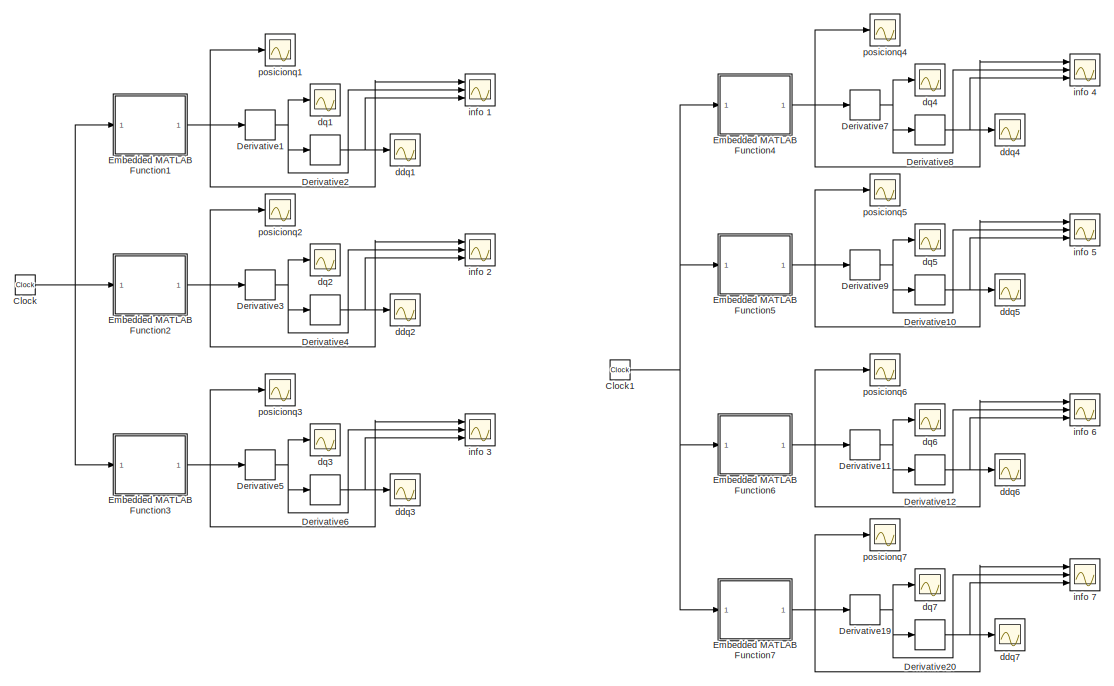
[diagram: root canvas - part 1/3, top right region]
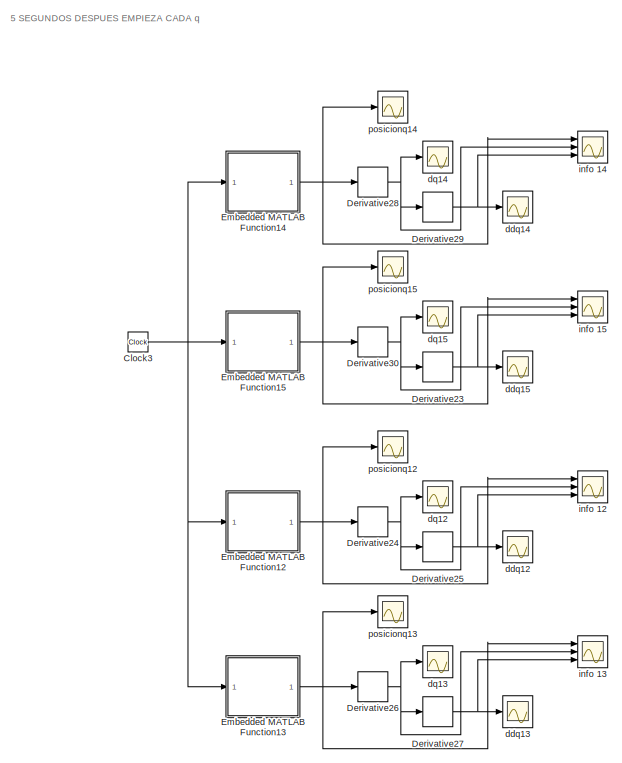
[diagram: root canvas - part 2/3, top left region]
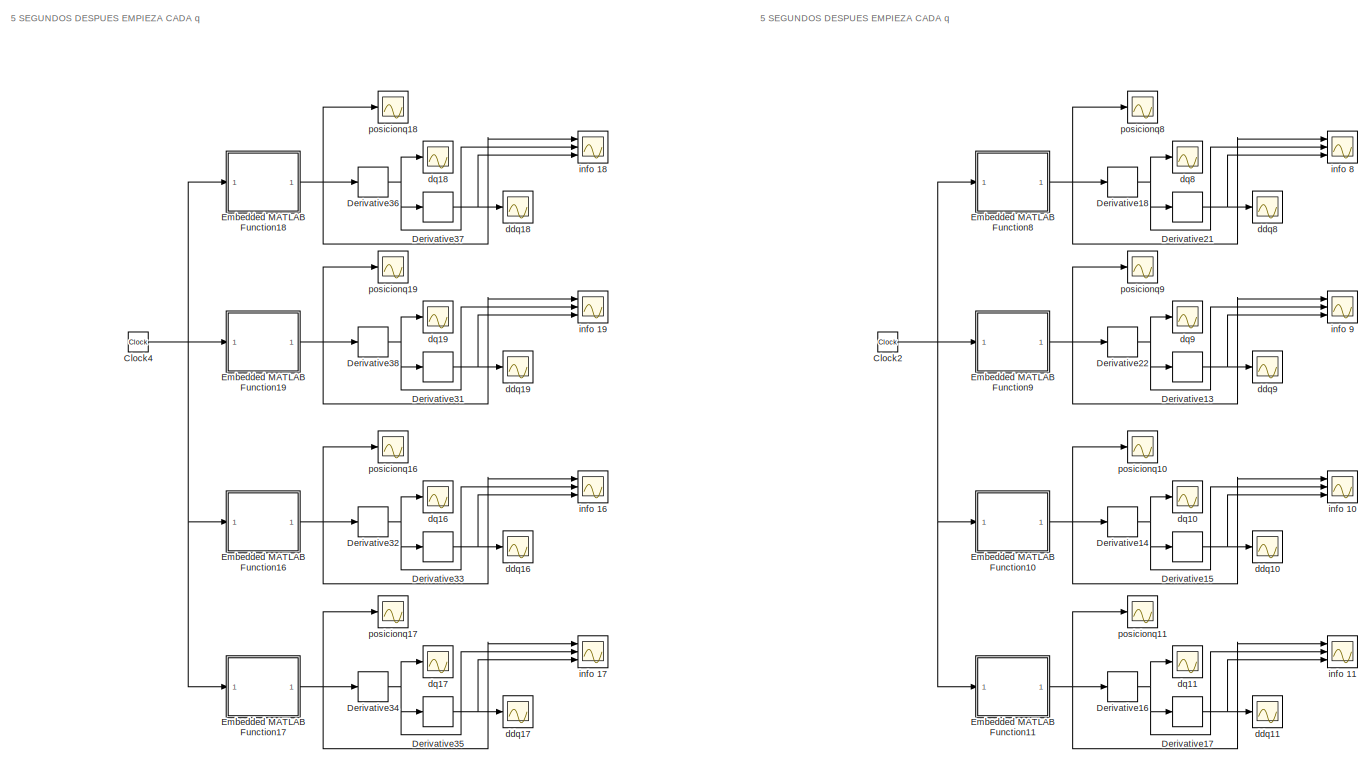
[diagram: root canvas - part 3/3, bottom center region]
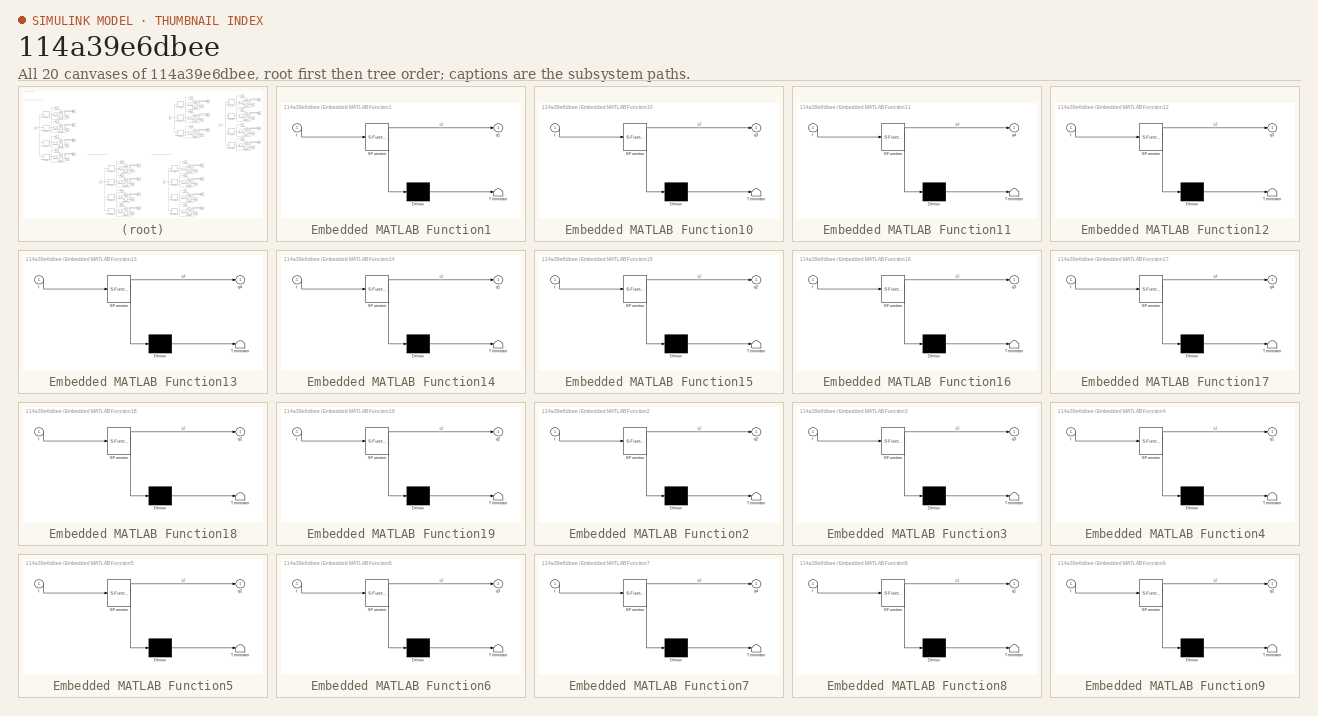
[diagram: thumbnail index - all 20 canvases of the model, root first then tree order]
MODEL slx_114a39e6dbee
KIND model
CONFIG AbsTol = auto
CONFIG EnableMultiTasking = on
CONFIG FixedStep = auto
CONFIG MaxStep = 0.1
CONFIG MinStep = auto
CONFIG RelTol = 1e-3
CONFIG SampleTimeConstraint = Unconstrained
CONFIG SolverName = ode45
CONFIG StartTime = 0.0
CONFIG StopTime = 200
BLOCK [Clock] Clock
  Decimation = 1000
BLOCK [Clock] Clock1
  Decimation = 1000
BLOCK [Clock] Clock2
  Decimation = 1000
BLOCK [Clock] Clock3
  Decimation = 1000
BLOCK [Clock] Clock4
  Decimation = 1000
BLOCK [Derivative] Derivative1
BLOCK [Derivative] Derivative10
BLOCK [Derivative] Derivative11
BLOCK [Derivative] Derivative12
BLOCK [Derivative] Derivative13
BLOCK [Derivative] Derivative14
BLOCK [Derivative] Derivative15
BLOCK [Derivative] Derivative16
BLOCK [Derivative] Derivative17
BLOCK [Derivative] Derivative18
BLOCK [Derivative] Derivative19
BLOCK [Derivative] Derivative2
BLOCK [Derivative] Derivative20
BLOCK [Derivative] Derivative21
BLOCK [Derivative] Derivative22
BLOCK [Derivative] Derivative23
BLOCK [Derivative] Derivative24
BLOCK [Derivative] Derivative25
BLOCK [Derivative] Derivative26
BLOCK [Derivative] Derivative27
BLOCK [Derivative] Derivative28
BLOCK [Derivative] Derivative29
BLOCK [Derivative] Derivative3
BLOCK [Derivative] Derivative30
BLOCK [Derivative] Derivative31
BLOCK [Derivative] Derivative32
BLOCK [Derivative] Derivative33
BLOCK [Derivative] Derivative34
BLOCK [Derivative] Derivative35
BLOCK [Derivative] Derivative36
BLOCK [Derivative] Derivative37
BLOCK [Derivative] Derivative38
BLOCK [Derivative] Derivative4
BLOCK [Derivative] Derivative5
BLOCK [Derivative] Derivative6
BLOCK [Derivative] Derivative7
BLOCK [Derivative] Derivative8
BLOCK [Derivative] Derivative9
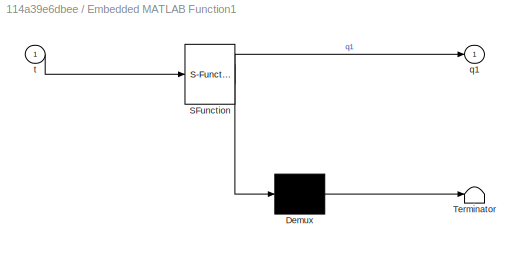
BLOCK [SubSystem] Embedded MATLAB Function1
  ErrorFcn = Stateflow.Translate.translate
  PermitHierarchicalResolution = ExplicitOnly
  Ports = [1, 1]
  RequestExecContextInheritance = off
  SFBlockType = MATLAB Function
  TreatAsAtomicUnit = on
BLOCK [Demux] Embedded MATLAB Function1/ Demux 
  Outputs = 1
  Ports = [1, 1]
BLOCK [S-Function] Embedded MATLAB Function1/ SFunction 
  EnableBusSupport = on
  FunctionName = sf_sfun
  PortCounts = [1 2]
  Ports = [1, 2]
  SFcnIsStateOwnerBlock = off
  SFunctionDeploymentMode = off
  Tag = Stateflow S-Function 1
BLOCK [Terminator] Embedded MATLAB Function1/ Terminator 
BLOCK [Outport] Embedded MATLAB Function1/q1
  VectorParamsAs1DForOutWhenUnconnected = off
BLOCK [Inport] Embedded MATLAB Function1/t
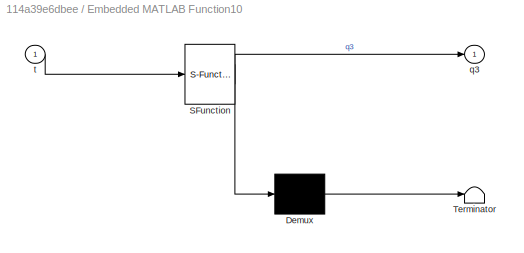
BLOCK [SubSystem] Embedded MATLAB Function10
  ErrorFcn = Stateflow.Translate.translate
  PermitHierarchicalResolution = ExplicitOnly
  Ports = [1, 1]
  RequestExecContextInheritance = off
  SFBlockType = MATLAB Function
  TreatAsAtomicUnit = on
BLOCK [Demux] Embedded MATLAB Function10/ Demux 
  Outputs = 1
  Ports = [1, 1]
BLOCK [S-Function] Embedded MATLAB Function10/ SFunction 
  EnableBusSupport = on
  FunctionName = sf_sfun
  PortCounts = [1 2]
  Ports = [1, 2]
  SFcnIsStateOwnerBlock = off
  SFunctionDeploymentMode = off
  Tag = Stateflow S-Function 7
BLOCK [Terminator] Embedded MATLAB Function10/ Terminator 
BLOCK [Outport] Embedded MATLAB Function10/q3
  VectorParamsAs1DForOutWhenUnconnected = off
BLOCK [Inport] Embedded MATLAB Function10/t
BLOCK [SubSystem] Embedded MATLAB Function11
  ErrorFcn = Stateflow.Translate.translate
  PermitHierarchicalResolution = ExplicitOnly
  Ports = [1, 1]
  RequestExecContextInheritance = off
  SFBlockType = MATLAB Function
  TreatAsAtomicUnit = on
BLOCK [Demux] Embedded MATLAB Function11/ Demux 
  Outputs = 1
  Ports = [1, 1]
BLOCK [S-Function] Embedded MATLAB Function11/ SFunction 
  EnableBusSupport = on
  FunctionName = sf_sfun
  PortCounts = [1 2]
  Ports = [1, 2]
  SFcnIsStateOwnerBlock = off
  SFunctionDeploymentMode = off
  Tag = Stateflow S-Function 8
BLOCK [Terminator] Embedded MATLAB Function11/ Terminator 
BLOCK [Outport] Embedded MATLAB Function11/q4
  VectorParamsAs1DForOutWhenUnconnected = off
BLOCK [Inport] Embedded MATLAB Function11/t
BLOCK [SubSystem] Embedded MATLAB Function12
  ErrorFcn = Stateflow.Translate.translate
  PermitHierarchicalResolution = ExplicitOnly
  Ports = [1, 1]
  RequestExecContextInheritance = off
  SFBlockType = MATLAB Function
  TreatAsAtomicUnit = on
BLOCK [Demux] Embedded MATLAB Function12/ Demux 
  Outputs = 1
  Ports = [1, 1]
BLOCK [S-Function] Embedded MATLAB Function12/ SFunction 
  EnableBusSupport = on
  FunctionName = sf_sfun
  PortCounts = [1 2]
  Ports = [1, 2]
  SFcnIsStateOwnerBlock = off
  SFunctionDeploymentMode = off
  Tag = Stateflow S-Function 12
BLOCK [Terminator] Embedded MATLAB Function12/ Terminator 
BLOCK [Outport] Embedded MATLAB Function12/q3
  VectorParamsAs1DForOutWhenUnconnected = off
BLOCK [Inport] Embedded MATLAB Function12/t
BLOCK [SubSystem] Embedded MATLAB Function13
  ErrorFcn = Stateflow.Translate.translate
  PermitHierarchicalResolution = ExplicitOnly
  Ports = [1, 1]
  RequestExecContextInheritance = off
  SFBlockType = MATLAB Function
  TreatAsAtomicUnit = on
BLOCK [Demux] Embedded MATLAB Function13/ Demux 
  Outputs = 1
  Ports = [1, 1]
BLOCK [S-Function] Embedded MATLAB Function13/ SFunction 
  EnableBusSupport = on
  FunctionName = sf_sfun
  PortCounts = [1 2]
  Ports = [1, 2]
  SFcnIsStateOwnerBlock = off
  SFunctionDeploymentMode = off
  Tag = Stateflow S-Function 13
BLOCK [Terminator] Embedded MATLAB Function13/ Terminator 
BLOCK [Outport] Embedded MATLAB Function13/q4
  VectorParamsAs1DForOutWhenUnconnected = off
BLOCK [Inport] Embedded MATLAB Function13/t
BLOCK [SubSystem] Embedded MATLAB Function14
  ErrorFcn = Stateflow.Translate.translate
  PermitHierarchicalResolution = ExplicitOnly
  Ports = [1, 1]
  RequestExecContextInheritance = off
  SFBlockType = MATLAB Function
  TreatAsAtomicUnit = on
BLOCK [Demux] Embedded MATLAB Function14/ Demux 
  Outputs = 1
  Ports = [1, 1]
BLOCK [S-Function] Embedded MATLAB Function14/ SFunction 
  EnableBusSupport = on
  FunctionName = sf_sfun
  PortCounts = [1 2]
  Ports = [1, 2]
  SFcnIsStateOwnerBlock = off
  SFunctionDeploymentMode = off
  Tag = Stateflow S-Function 14
BLOCK [Terminator] Embedded MATLAB Function14/ Terminator 
BLOCK [Outport] Embedded MATLAB Function14/q1
  VectorParamsAs1DForOutWhenUnconnected = off
BLOCK [Inport] Embedded MATLAB Function14/t
BLOCK [SubSystem] Embedded MATLAB Function15
  ErrorFcn = Stateflow.Translate.translate
  PermitHierarchicalResolution = ExplicitOnly
  Ports = [1, 1]
  RequestExecContextInheritance = off
  SFBlockType = MATLAB Function
  TreatAsAtomicUnit = on
BLOCK [Demux] Embedded MATLAB Function15/ Demux 
  Outputs = 1
  Ports = [1, 1]
BLOCK [S-Function] Embedded MATLAB Function15/ SFunction 
  EnableBusSupport = on
  FunctionName = sf_sfun
  PortCounts = [1 2]
  Ports = [1, 2]
  SFcnIsStateOwnerBlock = off
  SFunctionDeploymentMode = off
  Tag = Stateflow S-Function 15
BLOCK [Terminator] Embedded MATLAB Function15/ Terminator 
BLOCK [Outport] Embedded MATLAB Function15/q2
  VectorParamsAs1DForOutWhenUnconnected = off
BLOCK [Inport] Embedded MATLAB Function15/t
BLOCK [SubSystem] Embedded MATLAB Function16
  ErrorFcn = Stateflow.Translate.translate
  PermitHierarchicalResolution = ExplicitOnly
  Ports = [1, 1]
  RequestExecContextInheritance = off
  SFBlockType = MATLAB Function
  TreatAsAtomicUnit = on
BLOCK [Demux] Embedded MATLAB Function16/ Demux 
  Outputs = 1
  Ports = [1, 1]
BLOCK [S-Function] Embedded MATLAB Function16/ SFunction 
  EnableBusSupport = on
  FunctionName = sf_sfun
  PortCounts = [1 2]
  Ports = [1, 2]
  SFcnIsStateOwnerBlock = off
  SFunctionDeploymentMode = off
  Tag = Stateflow S-Function 16
BLOCK [Terminator] Embedded MATLAB Function16/ Terminator 
BLOCK [Outport] Embedded MATLAB Function16/q3
  VectorParamsAs1DForOutWhenUnconnected = off
BLOCK [Inport] Embedded MATLAB Function16/t
BLOCK [SubSystem] Embedded MATLAB Function17
  ErrorFcn = Stateflow.Translate.translate
  PermitHierarchicalResolution = ExplicitOnly
  Ports = [1, 1]
  RequestExecContextInheritance = off
  SFBlockType = MATLAB Function
  TreatAsAtomicUnit = on
BLOCK [Demux] Embedded MATLAB Function17/ Demux 
  Outputs = 1
  Ports = [1, 1]
BLOCK [S-Function] Embedded MATLAB Function17/ SFunction 
  EnableBusSupport = on
  FunctionName = sf_sfun
  PortCounts = [1 2]
  Ports = [1, 2]
  SFcnIsStateOwnerBlock = off
  SFunctionDeploymentMode = off
  Tag = Stateflow S-Function 17
BLOCK [Terminator] Embedded MATLAB Function17/ Terminator 
BLOCK [Outport] Embedded MATLAB Function17/q4
  VectorParamsAs1DForOutWhenUnconnected = off
BLOCK [Inport] Embedded MATLAB Function17/t
BLOCK [SubSystem] Embedded MATLAB Function18
  ErrorFcn = Stateflow.Translate.translate
  PermitHierarchicalResolution = ExplicitOnly
  Ports = [1, 1]
  RequestExecContextInheritance = off
  SFBlockType = MATLAB Function
  TreatAsAtomicUnit = on
BLOCK [Demux] Embedded MATLAB Function18/ Demux 
  Outputs = 1
  Ports = [1, 1]
BLOCK [S-Function] Embedded MATLAB Function18/ SFunction 
  EnableBusSupport = on
  FunctionName = sf_sfun
  PortCounts = [1 2]
  Ports = [1, 2]
  SFcnIsStateOwnerBlock = off
  SFunctionDeploymentMode = off
  Tag = Stateflow S-Function 18
BLOCK [Terminator] Embedded MATLAB Function18/ Terminator 
BLOCK [Outport] Embedded MATLAB Function18/q2
  VectorParamsAs1DForOutWhenUnconnected = off
BLOCK [Inport] Embedded MATLAB Function18/t
BLOCK [SubSystem] Embedded MATLAB Function19
  ErrorFcn = Stateflow.Translate.translate
  PermitHierarchicalResolution = ExplicitOnly
  Ports = [1, 1]
  RequestExecContextInheritance = off
  SFBlockType = MATLAB Function
  TreatAsAtomicUnit = on
BLOCK [Demux] Embedded MATLAB Function19/ Demux 
  Outputs = 1
  Ports = [1, 1]
BLOCK [S-Function] Embedded MATLAB Function19/ SFunction 
  EnableBusSupport = on
  FunctionName = sf_sfun
  PortCounts = [1 2]
  Ports = [1, 2]
  SFcnIsStateOwnerBlock = off
  SFunctionDeploymentMode = off
  Tag = Stateflow S-Function 19
BLOCK [Terminator] Embedded MATLAB Function19/ Terminator 
BLOCK [Outport] Embedded MATLAB Function19/q2
  VectorParamsAs1DForOutWhenUnconnected = off
BLOCK [Inport] Embedded MATLAB Function19/t
BLOCK [SubSystem] Embedded MATLAB Function2
  ErrorFcn = Stateflow.Translate.translate
  PermitHierarchicalResolution = ExplicitOnly
  Ports = [1, 1]
  RequestExecContextInheritance = off
  SFBlockType = MATLAB Function
  TreatAsAtomicUnit = on
BLOCK [Demux] Embedded MATLAB Function2/ Demux 
  Outputs = 1
  Ports = [1, 1]
BLOCK [S-Function] Embedded MATLAB Function2/ SFunction 
  EnableBusSupport = on
  FunctionName = sf_sfun
  PortCounts = [1 2]
  Ports = [1, 2]
  SFcnIsStateOwnerBlock = off
  SFunctionDeploymentMode = off
  Tag = Stateflow S-Function 2
BLOCK [Terminator] Embedded MATLAB Function2/ Terminator 
BLOCK [Outport] Embedded MATLAB Function2/q2
  VectorParamsAs1DForOutWhenUnconnected = off
BLOCK [Inport] Embedded MATLAB Function2/t
BLOCK [SubSystem] Embedded MATLAB Function3
  ErrorFcn = Stateflow.Translate.translate
  PermitHierarchicalResolution = ExplicitOnly
  Ports = [1, 1]
  RequestExecContextInheritance = off
  SFBlockType = MATLAB Function
  TreatAsAtomicUnit = on
BLOCK [Demux] Embedded MATLAB Function3/ Demux 
  Outputs = 1
  Ports = [1, 1]
BLOCK [S-Function] Embedded MATLAB Function3/ SFunction 
  EnableBusSupport = on
  FunctionName = sf_sfun
  PortCounts = [1 2]
  Ports = [1, 2]
  SFcnIsStateOwnerBlock = off
  SFunctionDeploymentMode = off
  Tag = Stateflow S-Function 3
BLOCK [Terminator] Embedded MATLAB Function3/ Terminator 
BLOCK [Outport] Embedded MATLAB Function3/q3
  VectorParamsAs1DForOutWhenUnconnected = off
BLOCK [Inport] Embedded MATLAB Function3/t
BLOCK [SubSystem] Embedded MATLAB Function4
  ErrorFcn = Stateflow.Translate.translate
  PermitHierarchicalResolution = ExplicitOnly
  Ports = [1, 1]
  RequestExecContextInheritance = off
  SFBlockType = MATLAB Function
  TreatAsAtomicUnit = on
BLOCK [Demux] Embedded MATLAB Function4/ Demux 
  Outputs = 1
  Ports = [1, 1]
BLOCK [S-Function] Embedded MATLAB Function4/ SFunction 
  EnableBusSupport = on
  FunctionName = sf_sfun
  PortCounts = [1 2]
  Ports = [1, 2]
  SFcnIsStateOwnerBlock = off
  SFunctionDeploymentMode = off
  Tag = Stateflow S-Function 4
BLOCK [Terminator] Embedded MATLAB Function4/ Terminator 
BLOCK [Outport] Embedded MATLAB Function4/q1
  VectorParamsAs1DForOutWhenUnconnected = off
BLOCK [Inport] Embedded MATLAB Function4/t
BLOCK [SubSystem] Embedded MATLAB Function5
  ErrorFcn = Stateflow.Translate.translate
  PermitHierarchicalResolution = ExplicitOnly
  Ports = [1, 1]
  RequestExecContextInheritance = off
  SFBlockType = MATLAB Function
  TreatAsAtomicUnit = on
BLOCK [Demux] Embedded MATLAB Function5/ Demux 
  Outputs = 1
  Ports = [1, 1]
BLOCK [S-Function] Embedded MATLAB Function5/ SFunction 
  EnableBusSupport = on
  FunctionName = sf_sfun
  PortCounts = [1 2]
  Ports = [1, 2]
  SFcnIsStateOwnerBlock = off
  SFunctionDeploymentMode = off
  Tag = Stateflow S-Function 5
BLOCK [Terminator] Embedded MATLAB Function5/ Terminator 
BLOCK [Outport] Embedded MATLAB Function5/q2
  VectorParamsAs1DForOutWhenUnconnected = off
BLOCK [Inport] Embedded MATLAB Function5/t
BLOCK [SubSystem] Embedded MATLAB Function6
  ErrorFcn = Stateflow.Translate.translate
  PermitHierarchicalResolution = ExplicitOnly
  Ports = [1, 1]
  RequestExecContextInheritance = off
  SFBlockType = MATLAB Function
  TreatAsAtomicUnit = on
BLOCK [Demux] Embedded MATLAB Function6/ Demux 
  Outputs = 1
  Ports = [1, 1]
BLOCK [S-Function] Embedded MATLAB Function6/ SFunction 
  EnableBusSupport = on
  FunctionName = sf_sfun
  PortCounts = [1 2]
  Ports = [1, 2]
  SFcnIsStateOwnerBlock = off
  SFunctionDeploymentMode = off
  Tag = Stateflow S-Function 6
BLOCK [Terminator] Embedded MATLAB Function6/ Terminator 
BLOCK [Outport] Embedded MATLAB Function6/q3
  VectorParamsAs1DForOutWhenUnconnected = off
BLOCK [Inport] Embedded MATLAB Function6/t
BLOCK [SubSystem] Embedded MATLAB Function7
  ErrorFcn = Stateflow.Translate.translate
  PermitHierarchicalResolution = ExplicitOnly
  Ports = [1, 1]
  RequestExecContextInheritance = off
  SFBlockType = MATLAB Function
  TreatAsAtomicUnit = on
BLOCK [Demux] Embedded MATLAB Function7/ Demux 
  Outputs = 1
  Ports = [1, 1]
BLOCK [S-Function] Embedded MATLAB Function7/ SFunction 
  EnableBusSupport = on
  FunctionName = sf_sfun
  PortCounts = [1 2]
  Ports = [1, 2]
  SFcnIsStateOwnerBlock = off
  SFunctionDeploymentMode = off
  Tag = Stateflow S-Function 10
BLOCK [Terminator] Embedded MATLAB Function7/ Terminator 
BLOCK [Outport] Embedded MATLAB Function7/q4
  VectorParamsAs1DForOutWhenUnconnected = off
BLOCK [Inport] Embedded MATLAB Function7/t
BLOCK [SubSystem] Embedded MATLAB Function8
  ErrorFcn = Stateflow.Translate.translate
  PermitHierarchicalResolution = ExplicitOnly
  Ports = [1, 1]
  RequestExecContextInheritance = off
  SFBlockType = MATLAB Function
  TreatAsAtomicUnit = on
BLOCK [Demux] Embedded MATLAB Function8/ Demux 
  Outputs = 1
  Ports = [1, 1]
BLOCK [S-Function] Embedded MATLAB Function8/ SFunction 
  EnableBusSupport = on
  FunctionName = sf_sfun
  PortCounts = [1 2]
  Ports = [1, 2]
  SFcnIsStateOwnerBlock = off
  SFunctionDeploymentMode = off
  Tag = Stateflow S-Function 9
BLOCK [Terminator] Embedded MATLAB Function8/ Terminator 
BLOCK [Outport] Embedded MATLAB Function8/q1
  VectorParamsAs1DForOutWhenUnconnected = off
BLOCK [Inport] Embedded MATLAB Function8/t
BLOCK [SubSystem] Embedded MATLAB Function9
  ErrorFcn = Stateflow.Translate.translate
  PermitHierarchicalResolution = ExplicitOnly
  Ports = [1, 1]
  RequestExecContextInheritance = off
  SFBlockType = MATLAB Function
  TreatAsAtomicUnit = on
BLOCK [Demux] Embedded MATLAB Function9/ Demux 
  Outputs = 1
  Ports = [1, 1]
BLOCK [S-Function] Embedded MATLAB Function9/ SFunction 
  EnableBusSupport = on
  FunctionName = sf_sfun
  PortCounts = [1 2]
  Ports = [1, 2]
  SFcnIsStateOwnerBlock = off
  SFunctionDeploymentMode = off
  Tag = Stateflow S-Function 11
BLOCK [Terminator] Embedded MATLAB Function9/ Terminator 
BLOCK [Outport] Embedded MATLAB Function9/q2
  VectorParamsAs1DForOutWhenUnconnected = off
BLOCK [Inport] Embedded MATLAB Function9/t
BLOCK [Scope] ddq1
  Floating = off
  NumInputPorts = 1
  Ports = [1]
  ScopeSpecificationString = Simulink.scopes.TimeScopeBlockCfg('CurrentConfiguration', extmgr.ConfigurationSet(extmgr.Configuration('Core','General UI',true),extmgr.Configuration('Core','Source UI',true),extmgr.Configuration('Sources','WiredSimulink',true,'DataLoggingSaveFormat','StructureWithTime','DataLoggingLimitDataPoints',true,'DataLoggingDecimation','1','DataLoggingDecimateData',true),extmgr.Configuration('Visuals','Tim...<+1690ch>
BLOCK [Scope] ddq10
  Floating = off
  NumInputPorts = 1
  Ports = [1]
  ScopeSpecificationString = Simulink.scopes.TimeScopeBlockCfg('CurrentConfiguration', extmgr.ConfigurationSet(extmgr.Configuration('Core','General UI',true,'FigureColor',[1 1 1]),extmgr.Configuration('Core','Source UI',true),extmgr.Configuration('Sources','WiredSimulink',true,'DataLoggingSaveFormat','StructureWithTime','DataLoggingLimitDataPoints',true,'DataLoggingDecimation','1','DataLoggingDecimateData',true,'DataLoggingVa...<+1850ch>  <repeated x10 — deduplicated; at blocks: ddq10, ddq11, ddq12, ddq13, ddq15, ddq18, ddq5, ddq6, ddq7, ddq9>
BLOCK [Scope] ddq11
  Floating = off
  NumInputPorts = 1
  Ports = [1]
BLOCK [Scope] ddq12
  Floating = off
  NumInputPorts = 1
  Ports = [1]
BLOCK [Scope] ddq13
  Floating = off
  NumInputPorts = 1
  Ports = [1]
BLOCK [Scope] ddq14
  Floating = off
  NumInputPorts = 1
  Ports = [1]
  ScopeSpecificationString = Simulink.scopes.TimeScopeBlockCfg('CurrentConfiguration', extmgr.ConfigurationSet(extmgr.Configuration('Core','General UI',true,'FigureColor',[1 1 1]),extmgr.Configuration('Core','Source UI',true),extmgr.Configuration('Sources','WiredSimulink',true,'DataLoggingSaveFormat','StructureWithTime','DataLoggingLimitDataPoints',true,'DataLoggingDecimation','1','DataLoggingDecimateData',true,'DataLoggingVa...<+1849ch>  <repeated x3 — deduplicated; at blocks: ddq14, ddq4, ddq8>
BLOCK [Scope] ddq15
  Floating = off
  NumInputPorts = 1
  Ports = [1]
BLOCK [Scope] ddq16
  Floating = off
  NumInputPorts = 1
  Ports = [1]
  ScopeSpecificationString = Simulink.scopes.TimeScopeBlockCfg('CurrentConfiguration', extmgr.ConfigurationSet(extmgr.Configuration('Core','General UI',true,'FigureColor',[1 1 1]),extmgr.Configuration('Core','Source UI',true),extmgr.Configuration('Sources','WiredSimulink',true,'DataLoggingSaveFormat','StructureWithTime','DataLoggingLimitDataPoints',true,'DataLoggingDecimation','1','DataLoggingDecimateData',true,'DataLoggingVa...<+1851ch>  <repeated x3 — deduplicated; at blocks: ddq16, ddq17, ddq19>
BLOCK [Scope] ddq17
  Floating = off
  NumInputPorts = 1
  Ports = [1]
BLOCK [Scope] ddq18
  Floating = off
  NumInputPorts = 1
  Ports = [1]
BLOCK [Scope] ddq19
  Floating = off
  NumInputPorts = 1
  Ports = [1]
BLOCK [Scope] ddq2
  Floating = off
  NumInputPorts = 1
  Ports = [1]
  ScopeSpecificationString = Simulink.scopes.TimeScopeBlockCfg('CurrentConfiguration', extmgr.ConfigurationSet(extmgr.Configuration('Core','General UI',true),extmgr.Configuration('Core','Source UI',true),extmgr.Configuration('Sources','WiredSimulink',true,'DataLoggingSaveFormat','StructureWithTime','DataLoggingLimitDataPoints',true,'DataLoggingDecimation','1','DataLoggingDecimateData',true,'DataLoggingVariableName','ScopeData...<+1729ch>
BLOCK [Scope] ddq3
  Floating = off
  NumInputPorts = 1
  Ports = [1]
  ScopeSpecificationString = Simulink.scopes.TimeScopeBlockCfg('CurrentConfiguration', extmgr.ConfigurationSet(extmgr.Configuration('Core','General UI',true),extmgr.Configuration('Core','Source UI',true),extmgr.Configuration('Sources','WiredSimulink',true,'DataLoggingSaveFormat','StructureWithTime','DataLoggingLimitDataPoints',true,'DataLoggingDecimation','1','DataLoggingDecimateData',true,'DataLoggingVariableName','ScopeData...<+1730ch>
BLOCK [Scope] ddq4
  Floating = off
  NumInputPorts = 1
  Ports = [1]
BLOCK [Scope] ddq5
  Floating = off
  NumInputPorts = 1
  Ports = [1]
BLOCK [Scope] ddq6
  Floating = off
  NumInputPorts = 1
  Ports = [1]
BLOCK [Scope] ddq7
  Floating = off
  NumInputPorts = 1
  Ports = [1]
BLOCK [Scope] ddq8
  Floating = off
  NumInputPorts = 1
  Ports = [1]
BLOCK [Scope] ddq9
  Floating = off
  NumInputPorts = 1
  Ports = [1]
BLOCK [Scope] dq1
  Floating = off
  NumInputPorts = 1
  Ports = [1]
  ScopeSpecificationString = Simulink.scopes.TimeScopeBlockCfg('CurrentConfiguration', extmgr.ConfigurationSet(extmgr.Configuration('Core','General UI',true),extmgr.Configuration('Core','Source UI',true),extmgr.Configuration('Sources','WiredSimulink',true,'DataLoggingSaveFormat','StructureWithTime','DataLoggingLimitDataPoints',true,'DataLoggingDecimation','1','DataLoggingDecimateData',true,'DataLoggingVariableName','ScopeData...<+1728ch>
BLOCK [Scope] dq10
  Floating = off
  NumInputPorts = 1
  Ports = [1]
  ScopeSpecificationString = Simulink.scopes.TimeScopeBlockCfg('CurrentConfiguration', extmgr.ConfigurationSet(extmgr.Configuration('Core','General UI',true,'FigureColor',[1 1 1]),extmgr.Configuration('Core','Source UI',true),extmgr.Configuration('Sources','WiredSimulink',true,'DataLoggingSaveFormat','StructureWithTime','DataLoggingLimitDataPoints',true,'DataLoggingDecimation','1','DataLoggingDecimateData',true,'DataLoggingVa...<+1898ch>  <repeated x7 — deduplicated; at blocks: dq10, dq12, dq13, dq19, dq6, dq7, dq9>
BLOCK [Scope] dq11
  Floating = off
  NumInputPorts = 1
  Ports = [1]
  ScopeSpecificationString = Simulink.scopes.TimeScopeBlockCfg('CurrentConfiguration', extmgr.ConfigurationSet(extmgr.Configuration('Core','General UI',true,'FigureColor',[1 1 1]),extmgr.Configuration('Core','Source UI',true),extmgr.Configuration('Sources','WiredSimulink',true,'DataLoggingSaveFormat','StructureWithTime','DataLoggingLimitDataPoints',true,'DataLoggingDecimation','1','DataLoggingDecimateData',true,'DataLoggingVa...<+1899ch>  <repeated x3 — deduplicated; at blocks: dq11, dq16, dq17>
BLOCK [Scope] dq12
  Floating = off
  NumInputPorts = 1
  Ports = [1]
BLOCK [Scope] dq13
  Floating = off
  NumInputPorts = 1
  Ports = [1]
BLOCK [Scope] dq14
  Floating = off
  NumInputPorts = 1
  Ports = [1]
  ScopeSpecificationString = Simulink.scopes.TimeScopeBlockCfg('CurrentConfiguration', extmgr.ConfigurationSet(extmgr.Configuration('Core','General UI',true,'FigureColor',[1 1 1]),extmgr.Configuration('Core','Source UI',true),extmgr.Configuration('Sources','WiredSimulink',true,'DataLoggingSaveFormat','StructureWithTime','DataLoggingLimitDataPoints',true,'DataLoggingDecimation','1','DataLoggingDecimateData',true,'DataLoggingVa...<+1893ch>
BLOCK [Scope] dq15
  Floating = off
  NumInputPorts = 1
  Ports = [1]
  ScopeSpecificationString = Simulink.scopes.TimeScopeBlockCfg('CurrentConfiguration', extmgr.ConfigurationSet(extmgr.Configuration('Core','General UI',true,'FigureColor',[1 1 1]),extmgr.Configuration('Core','Source UI',true),extmgr.Configuration('Sources','WiredSimulink',true,'DataLoggingSaveFormat','StructureWithTime','DataLoggingLimitDataPoints',true,'DataLoggingDecimation','1','DataLoggingDecimateData',true,'DataLoggingVa...<+1897ch>
BLOCK [Scope] dq16
  Floating = off
  NumInputPorts = 1
  Ports = [1]
BLOCK [Scope] dq17
  Floating = off
  NumInputPorts = 1
  Ports = [1]
BLOCK [Scope] dq18
  Floating = off
  NumInputPorts = 1
  Ports = [1]
  ScopeSpecificationString = Simulink.scopes.TimeScopeBlockCfg('CurrentConfiguration', extmgr.ConfigurationSet(extmgr.Configuration('Core','General UI',true,'FigureColor',[1 1 1]),extmgr.Configuration('Core','Source UI',true),extmgr.Configuration('Sources','WiredSimulink',true,'DataLoggingSaveFormat','StructureWithTime','DataLoggingLimitDataPoints',true,'DataLoggingDecimation','1','DataLoggingDecimateData',true,'DataLoggingVa...<+1894ch>
BLOCK [Scope] dq19
  Floating = off
  NumInputPorts = 1
  Ports = [1]
BLOCK [Scope] dq2
  Floating = off
  NumInputPorts = 1
  Ports = [1]
  ScopeSpecificationString = Simulink.scopes.TimeScopeBlockCfg('CurrentConfiguration', extmgr.ConfigurationSet(extmgr.Configuration('Core','General UI',true),extmgr.Configuration('Core','Source UI',true),extmgr.Configuration('Sources','WiredSimulink',true,'DataLoggingSaveFormat','StructureWithTime','DataLoggingLimitDataPoints',true,'DataLoggingDecimation','1','DataLoggingDecimateData',true,'DataLoggingVariableName','ScopeData...<+1728ch>
BLOCK [Scope] dq3
  Floating = off
  NumInputPorts = 1
  Ports = [1]
  ScopeSpecificationString = Simulink.scopes.TimeScopeBlockCfg('CurrentConfiguration', extmgr.ConfigurationSet(extmgr.Configuration('Core','General UI',true),extmgr.Configuration('Core','Source UI',true),extmgr.Configuration('Sources','WiredSimulink',true,'DataLoggingSaveFormat','StructureWithTime','DataLoggingLimitDataPoints',true,'DataLoggingDecimation','1','DataLoggingDecimateData',true,'DataLoggingVariableName','ScopeData...<+1729ch>
BLOCK [Scope] dq4
  Floating = off
  NumInputPorts = 1
  Ports = [1]
  ScopeSpecificationString = Simulink.scopes.TimeScopeBlockCfg('CurrentConfiguration', extmgr.ConfigurationSet(extmgr.Configuration('Core','General UI',true,'FigureColor',[1 1 1]),extmgr.Configuration('Core','Source UI',true),extmgr.Configuration('Sources','WiredSimulink',true,'DataLoggingSaveFormat','StructureWithTime','DataLoggingLimitDataPoints',true,'DataLoggingDecimation','1','DataLoggingDecimateData',true,'DataLoggingVa...<+1893ch>
BLOCK [Scope] dq5
  Floating = off
  NumInputPorts = 1
  Ports = [1]
  ScopeSpecificationString = Simulink.scopes.TimeScopeBlockCfg('CurrentConfiguration', extmgr.ConfigurationSet(extmgr.Configuration('Core','General UI',true,'FigureColor',[1 1 1]),extmgr.Configuration('Core','Source UI',true),extmgr.Configuration('Sources','WiredSimulink',true,'DataLoggingSaveFormat','StructureWithTime','DataLoggingLimitDataPoints',true,'DataLoggingDecimation','1','DataLoggingDecimateData',true,'DataLoggingVa...<+1897ch>
BLOCK [Scope] dq6
  Floating = off
  NumInputPorts = 1
  Ports = [1]
BLOCK [Scope] dq7
  Floating = off
  NumInputPorts = 1
  Ports = [1]
BLOCK [Scope] dq8
  Floating = off
  NumInputPorts = 1
  Ports = [1]
  ScopeSpecificationString = Simulink.scopes.TimeScopeBlockCfg('CurrentConfiguration', extmgr.ConfigurationSet(extmgr.Configuration('Core','General UI',true,'FigureColor',[1 1 1]),extmgr.Configuration('Core','Source UI',true),extmgr.Configuration('Sources','WiredSimulink',true,'DataLoggingSaveFormat','StructureWithTime','DataLoggingLimitDataPoints',true,'DataLoggingDecimation','1','DataLoggingDecimateData',true,'DataLoggingVa...<+1894ch>
BLOCK [Scope] dq9
  Floating = off
  NumInputPorts = 1
  Ports = [1]
BLOCK [Scope] info 1
  Floating = off
  NumInputPorts = 3
  Ports = [3]
  ScopeSpecificationString = Simulink.scopes.TimeScopeBlockCfg('CurrentConfiguration', extmgr.ConfigurationSet(extmgr.Configuration('Core','General UI',true,'FigureColor',[1 1 1]),extmgr.Configuration('Core','Source UI',true),extmgr.Configuration('Sources','WiredSimulink',true,'DataLoggingSaveFormat','StructureWithTime','DataLoggingLimitDataPoints',true,'DataLoggingDecimation','1','DataLoggingDecimateData',true,'DataLoggingVa...<+2156ch>
BLOCK [Scope] info 10
  Floating = off
  NumInputPorts = 3
  Ports = [3]
  ScopeSpecificationString = Simulink.scopes.TimeScopeBlockCfg('CurrentConfiguration', extmgr.ConfigurationSet(extmgr.Configuration('Core','General UI',true,'FigureColor',[1 1 1]),extmgr.Configuration('Core','Source UI',true),extmgr.Configuration('Sources','WiredSimulink',true,'DataLoggingSaveFormat','StructureWithTime','DataLoggingLimitDataPoints',true,'DataLoggingDecimation','1','DataLoggingDecimateData',true,'DataLoggingVa...<+2164ch>
BLOCK [Scope] info 11
  Floating = off
  NumInputPorts = 3
  Ports = [3]
  ScopeSpecificationString = Simulink.scopes.TimeScopeBlockCfg('CurrentConfiguration', extmgr.ConfigurationSet(extmgr.Configuration('Core','General UI',true,'FigureColor',[1 1 1]),extmgr.Configuration('Core','Source UI',true),extmgr.Configuration('Sources','WiredSimulink',true,'DataLoggingSaveFormat','StructureWithTime','DataLoggingLimitDataPoints',true,'DataLoggingDecimation','1','DataLoggingDecimateData',true,'DataLoggingVa...<+2163ch>  <repeated x5 — deduplicated; at blocks: info 11, info 12, info 13, info 17, info 7>
BLOCK [Scope] info 12
  Floating = off
  NumInputPorts = 3
  Ports = [3]
BLOCK [Scope] info 13
  Floating = off
  NumInputPorts = 3
  Ports = [3]
BLOCK [Scope] info 14
  Floating = off
  NumInputPorts = 3
  Ports = [3]
  ScopeSpecificationString = Simulink.scopes.TimeScopeBlockCfg('CurrentConfiguration', extmgr.ConfigurationSet(extmgr.Configuration('Core','General UI',true,'FigureColor',[1 1 1]),extmgr.Configuration('Core','Source UI',true),extmgr.Configuration('Sources','WiredSimulink',true,'DataLoggingSaveFormat','StructureWithTime','DataLoggingLimitDataPoints',true,'DataLoggingDecimation','1','DataLoggingDecimateData',true,'DataLoggingVa...<+2159ch>  <repeated x3 — deduplicated; at blocks: info 14, info 18, info 8>
BLOCK [Scope] info 15
  Floating = off
  NumInputPorts = 3
  Ports = [3]
  ScopeSpecificationString = Simulink.scopes.TimeScopeBlockCfg('CurrentConfiguration', extmgr.ConfigurationSet(extmgr.Configuration('Core','General UI',true,'FigureColor',[1 1 1]),extmgr.Configuration('Core','Source UI',true),extmgr.Configuration('Sources','WiredSimulink',true,'DataLoggingSaveFormat','StructureWithTime','DataLoggingLimitDataPoints',true,'DataLoggingDecimation','1','DataLoggingDecimateData',true,'DataLoggingVa...<+2162ch>  <repeated x4 — deduplicated; at blocks: info 15, info 19, info 6, info 9>
BLOCK [Scope] info 16
  Floating = off
  NumInputPorts = 3
  Ports = [3]
  ScopeSpecificationString = Simulink.scopes.TimeScopeBlockCfg('CurrentConfiguration', extmgr.ConfigurationSet(extmgr.Configuration('Core','General UI',true,'FigureColor',[1 1 1]),extmgr.Configuration('Core','Source UI',true),extmgr.Configuration('Sources','WiredSimulink',true,'DataLoggingSaveFormat','StructureWithTime','DataLoggingLimitDataPoints',true,'DataLoggingDecimation','1','DataLoggingDecimateData',true,'DataLoggingVa...<+2164ch>
BLOCK [Scope] info 17
  Floating = off
  NumInputPorts = 3
  Ports = [3]
BLOCK [Scope] info 18
  Floating = off
  NumInputPorts = 3
  Ports = [3]
BLOCK [Scope] info 19
  Floating = off
  NumInputPorts = 3
  Ports = [3]
BLOCK [Scope] info 2
  Floating = off
  NumInputPorts = 3
  Ports = [3]
  ScopeSpecificationString = Simulink.scopes.TimeScopeBlockCfg('CurrentConfiguration', extmgr.ConfigurationSet(extmgr.Configuration('Core','General UI',true,'FigureColor',[1 1 1]),extmgr.Configuration('Core','Source UI',true),extmgr.Configuration('Sources','WiredSimulink',true,'DataLoggingSaveFormat','StructureWithTime','DataLoggingLimitDataPoints',true,'DataLoggingDecimation','1','DataLoggingDecimateData',true,'DataLoggingVa...<+2166ch>
BLOCK [Scope] info 3
  Floating = off
  NumInputPorts = 3
  Ports = [3]
  ScopeSpecificationString = Simulink.scopes.TimeScopeBlockCfg('CurrentConfiguration', extmgr.ConfigurationSet(extmgr.Configuration('Core','General UI',true,'FigureColor',[1 1 1]),extmgr.Configuration('Core','Source UI',true),extmgr.Configuration('Sources','WiredSimulink',true,'DataLoggingSaveFormat','StructureWithTime','DataLoggingLimitDataPoints',true,'DataLoggingDecimation','1','DataLoggingDecimateData',true,'DataLoggingVa...<+2176ch>
BLOCK [Scope] info 4
  Floating = off
  NumInputPorts = 3
  Ports = [3]
  ScopeSpecificationString = Simulink.scopes.TimeScopeBlockCfg('CurrentConfiguration', extmgr.ConfigurationSet(extmgr.Configuration('Core','General UI',true,'FigureColor',[1 1 1]),extmgr.Configuration('Core','Source UI',true),extmgr.Configuration('Sources','WiredSimulink',true,'DataLoggingSaveFormat','StructureWithTime','DataLoggingLimitDataPoints',true,'DataLoggingDecimation','1','DataLoggingDecimateData',true,'DataLoggingVa...<+2156ch>
BLOCK [Scope] info 5
  Floating = off
  NumInputPorts = 3
  Ports = [3]
  ScopeSpecificationString = Simulink.scopes.TimeScopeBlockCfg('CurrentConfiguration', extmgr.ConfigurationSet(extmgr.Configuration('Core','General UI',true,'FigureColor',[1 1 1]),extmgr.Configuration('Core','Source UI',true),extmgr.Configuration('Sources','WiredSimulink',true,'DataLoggingSaveFormat','StructureWithTime','DataLoggingLimitDataPoints',true,'DataLoggingDecimation','1','DataLoggingDecimateData',true,'DataLoggingVa...<+2160ch>
BLOCK [Scope] info 6
  Floating = off
  NumInputPorts = 3
  Ports = [3]
BLOCK [Scope] info 7
  Floating = off
  NumInputPorts = 3
  Ports = [3]
BLOCK [Scope] info 8
  Floating = off
  NumInputPorts = 3
  Ports = [3]
BLOCK [Scope] info 9
  Floating = off
  NumInputPorts = 3
  Ports = [3]
BLOCK [Scope] posicionq1
  Floating = off
  NumInputPorts = 1
  Ports = [1]
  ScopeSpecificationString = Simulink.scopes.TimeScopeBlockCfg('CurrentConfiguration', extmgr.ConfigurationSet(extmgr.Configuration('Core','General UI',true),extmgr.Configuration('Core','Source UI',true),extmgr.Configuration('Sources','WiredSimulink',true,'DataLoggingSaveFormat','StructureWithTime','DataLoggingLimitDataPoints',true,'DataLoggingDecimation','1','DataLoggingDecimateData',true,'DataLoggingVariableName','ScopeData...<+1748ch>
BLOCK [Scope] posicionq10
  Floating = off
  NumInputPorts = 1
  Ports = [1]
  ScopeSpecificationString = Simulink.scopes.TimeScopeBlockCfg('CurrentConfiguration', extmgr.ConfigurationSet(extmgr.Configuration('Core','General UI',true,'FigureColor',[1 1 1]),extmgr.Configuration('Core','Source UI',true),extmgr.Configuration('Sources','WiredSimulink',true,'DataLoggingSaveFormat','StructureWithTime','DataLoggingLimitDataPoints',true,'DataLoggingDecimation','1','DataLoggingDecimateData',true,'DataLoggingVa...<+2173ch>
BLOCK [Scope] posicionq11
  Floating = off
  NumInputPorts = 1
  Ports = [1]
  ScopeSpecificationString = Simulink.scopes.TimeScopeBlockCfg('CurrentConfiguration', extmgr.ConfigurationSet(extmgr.Configuration('Core','General UI',true,'FigureColor',[1 1 1]),extmgr.Configuration('Core','Source UI',true),extmgr.Configuration('Sources','WiredSimulink',true,'DataLoggingSaveFormat','StructureWithTime','DataLoggingLimitDataPoints',true,'DataLoggingDecimation','1','DataLoggingDecimateData',true,'DataLoggingVa...<+1870ch>  <repeated x3 — deduplicated; at blocks: posicionq11, posicionq13, posicionq17>
BLOCK [Scope] posicionq12
  Floating = off
  NumInputPorts = 1
  Ports = [1]
  ScopeSpecificationString = Simulink.scopes.TimeScopeBlockCfg('CurrentConfiguration', extmgr.ConfigurationSet(extmgr.Configuration('Core','General UI',true,'FigureColor',[1 1 1]),extmgr.Configuration('Core','Source UI',true),extmgr.Configuration('Sources','WiredSimulink',true,'DataLoggingSaveFormat','StructureWithTime','DataLoggingLimitDataPoints',true,'DataLoggingDecimation','1','DataLoggingDecimateData',true,'DataLoggingVa...<+2173ch>
BLOCK [Scope] posicionq13
  Floating = off
  NumInputPorts = 1
  Ports = [1]
BLOCK [Scope] posicionq14
  Floating = off
  NumInputPorts = 1
  Ports = [1]
  ScopeSpecificationString = Simulink.scopes.TimeScopeBlockCfg('CurrentConfiguration', extmgr.ConfigurationSet(extmgr.Configuration('Core','General UI',true,'FigureColor',[1 1 1]),extmgr.Configuration('Core','Source UI',true),extmgr.Configuration('Sources','WiredSimulink',true,'DataLoggingSaveFormat','StructureWithTime','DataLoggingLimitDataPoints',true,'DataLoggingDecimation','1','DataLoggingDecimateData',true,'DataLoggingVa...<+1844ch>  <repeated x3 — deduplicated; at blocks: posicionq14, posicionq18, posicionq8>
BLOCK [Scope] posicionq15
  Floating = off
  NumInputPorts = 1
  Ports = [1]
  ScopeSpecificationString = Simulink.scopes.TimeScopeBlockCfg('CurrentConfiguration', extmgr.ConfigurationSet(extmgr.Configuration('Core','General UI',true,'FigureColor',[1 1 1]),extmgr.Configuration('Core','Source UI',true),extmgr.Configuration('Sources','WiredSimulink',true,'DataLoggingSaveFormat','StructureWithTime','DataLoggingLimitDataPoints',true,'DataLoggingDecimation','1','DataLoggingDecimateData',true,'DataLoggingVa...<+2188ch>
BLOCK [Scope] posicionq16
  Floating = off
  NumInputPorts = 1
  Ports = [1]
  ScopeSpecificationString = Simulink.scopes.TimeScopeBlockCfg('CurrentConfiguration', extmgr.ConfigurationSet(extmgr.Configuration('Core','General UI',true,'FigureColor',[1 1 1]),extmgr.Configuration('Core','Source UI',true),extmgr.Configuration('Sources','WiredSimulink',true,'DataLoggingSaveFormat','StructureWithTime','DataLoggingLimitDataPoints',true,'DataLoggingDecimation','1','DataLoggingDecimateData',true,'DataLoggingVa...<+2176ch>
BLOCK [Scope] posicionq17
  Floating = off
  NumInputPorts = 1
  Ports = [1]
BLOCK [Scope] posicionq18
  Floating = off
  NumInputPorts = 1
  Ports = [1]
BLOCK [Scope] posicionq19
  Floating = off
  NumInputPorts = 1
  Ports = [1]
  ScopeSpecificationString = Simulink.scopes.TimeScopeBlockCfg('CurrentConfiguration', extmgr.ConfigurationSet(extmgr.Configuration('Core','General UI',true,'FigureColor',[1 1 1]),extmgr.Configuration('Core','Source UI',true),extmgr.Configuration('Sources','WiredSimulink',true,'DataLoggingSaveFormat','StructureWithTime','DataLoggingLimitDataPoints',true,'DataLoggingDecimation','1','DataLoggingDecimateData',true,'DataLoggingVa...<+2189ch>
BLOCK [Scope] posicionq2
  Floating = off
  NumInputPorts = 1
  Ports = [1]
  ScopeSpecificationString = Simulink.scopes.TimeScopeBlockCfg('CurrentConfiguration', extmgr.ConfigurationSet(extmgr.Configuration('Core','General UI',true),extmgr.Configuration('Core','Source UI',true),extmgr.Configuration('Sources','WiredSimulink',true,'DataLoggingSaveFormat','StructureWithTime','DataLoggingLimitDataPoints',true,'DataLoggingDecimation','1','DataLoggingDecimateData',true,'DataLoggingVariableName','ScopeData...<+1743ch>
BLOCK [Scope] posicionq3
  Floating = off
  NumInputPorts = 1
  Ports = [1]
  ScopeSpecificationString = Simulink.scopes.TimeScopeBlockCfg('CurrentConfiguration', extmgr.ConfigurationSet(extmgr.Configuration('Core','General UI',true),extmgr.Configuration('Core','Source UI',true),extmgr.Configuration('Sources','WiredSimulink',true,'DataLoggingSaveFormat','StructureWithTime','DataLoggingLimitDataPoints',true,'DataLoggingDecimation','1','DataLoggingDecimateData',true,'DataLoggingVariableName','ScopeData...<+1748ch>
BLOCK [Scope] posicionq4
  Floating = off
  NumInputPorts = 1
  Ports = [1]
  ScopeSpecificationString = Simulink.scopes.TimeScopeBlockCfg('CurrentConfiguration', extmgr.ConfigurationSet(extmgr.Configuration('Core','General UI',true,'FigureColor',[1 1 1]),extmgr.Configuration('Core','Source UI',true),extmgr.Configuration('Sources','WiredSimulink',true,'DataLoggingSaveFormat','StructureWithTime','DataLoggingLimitDataPoints',true,'DataLoggingDecimation','1','DataLoggingDecimateData',true,'DataLoggingVa...<+1867ch>
BLOCK [Scope] posicionq5
  Floating = off
  NumInputPorts = 1
  Ports = [1]
  ScopeSpecificationString = Simulink.scopes.TimeScopeBlockCfg('CurrentConfiguration', extmgr.ConfigurationSet(extmgr.Configuration('Core','General UI',true,'FigureColor',[1 1 1]),extmgr.Configuration('Core','Source UI',true),extmgr.Configuration('Sources','WiredSimulink',true,'DataLoggingSaveFormat','StructureWithTime','DataLoggingLimitDataPoints',true,'DataLoggingDecimation','1','DataLoggingDecimateData',true,'DataLoggingVa...<+2186ch>
BLOCK [Scope] posicionq6
  Floating = off
  NumInputPorts = 1
  Ports = [1]
  ScopeSpecificationString = Simulink.scopes.TimeScopeBlockCfg('CurrentConfiguration', extmgr.ConfigurationSet(extmgr.Configuration('Core','General UI',true,'FigureColor',[1 1 1]),extmgr.Configuration('Core','Source UI',true),extmgr.Configuration('Sources','WiredSimulink',true,'DataLoggingSaveFormat','StructureWithTime','DataLoggingLimitDataPoints',true,'DataLoggingDecimation','1','DataLoggingDecimateData',true,'DataLoggingVa...<+2174ch>
BLOCK [Scope] posicionq7
  Floating = off
  NumInputPorts = 1
  Ports = [1]
  ScopeSpecificationString = Simulink.scopes.TimeScopeBlockCfg('CurrentConfiguration', extmgr.ConfigurationSet(extmgr.Configuration('Core','General UI',true,'FigureColor',[1 1 1]),extmgr.Configuration('Core','Source UI',true),extmgr.Configuration('Sources','WiredSimulink',true,'DataLoggingSaveFormat','StructureWithTime','DataLoggingLimitDataPoints',true,'DataLoggingDecimation','1','DataLoggingDecimateData',true,'DataLoggingVa...<+1865ch>
BLOCK [Scope] posicionq8
  Floating = off
  NumInputPorts = 1
  Ports = [1]
BLOCK [Scope] posicionq9
  Floating = off
  NumInputPorts = 1
  Ports = [1]
  ScopeSpecificationString = Simulink.scopes.TimeScopeBlockCfg('CurrentConfiguration', extmgr.ConfigurationSet(extmgr.Configuration('Core','General UI',true,'FigureColor',[1 1 1]),extmgr.Configuration('Core','Source UI',true),extmgr.Configuration('Sources','WiredSimulink',true,'DataLoggingSaveFormat','StructureWithTime','DataLoggingLimitDataPoints',true,'DataLoggingDecimation','1','DataLoggingDecimateData',true,'DataLoggingVa...<+2198ch>
ANNOTATION (root): 5 SEGUNDOS DESPUES EMPIEZA CADA q
NET Clock1:1 -> Embedded MATLAB Function4:1, Embedded MATLAB Function5:1, Embedded MATLAB Function6:1, Embedded MATLAB Function7:1
NET Clock2:1 -> Embedded MATLAB Function10:1, Embedded MATLAB Function11:1, Embedded MATLAB Function8:1, Embedded MATLAB Function9:1
NET Clock3:1 -> Embedded MATLAB Function12:1, Embedded MATLAB Function13:1, Embedded MATLAB Function14:1, Embedded MATLAB Function15:1
NET Clock4:1 -> Embedded MATLAB Function16:1, Embedded MATLAB Function17:1, Embedded MATLAB Function18:1, Embedded MATLAB Function19:1
NET Clock:1 -> Embedded MATLAB Function1:1, Embedded MATLAB Function2:1, Embedded MATLAB Function3:1
NET Derivative10:1 -> ddq5:1, info 5:3
NET Derivative11:1 -> Derivative12:1, dq6:1, info 6:2
NET Derivative12:1 -> ddq6:1, info 6:3
NET Derivative13:1 -> ddq9:1, info 9:3
NET Derivative14:1 -> Derivative15:1, dq10:1, info 10:2
NET Derivative15:1 -> ddq10:1, info 10:3
NET Derivative16:1 -> Derivative17:1, dq11:1, info 11:2
NET Derivative17:1 -> ddq11:1, info 11:3
NET Derivative18:1 -> Derivative21:1, dq8:1, info 8:2
NET Derivative19:1 -> Derivative20:1, dq7:1, info 7:2
NET Derivative1:1 -> Derivative2:1, dq1:1, info 1:2
NET Derivative20:1 -> ddq7:1, info 7:3
NET Derivative21:1 -> ddq8:1, info 8:3
NET Derivative22:1 -> Derivative13:1, dq9:1, info 9:2
NET Derivative23:1 -> ddq15:1, info 15:3
NET Derivative24:1 -> Derivative25:1, dq12:1, info 12:2
NET Derivative25:1 -> ddq12:1, info 12:3
NET Derivative26:1 -> Derivative27:1, dq13:1, info 13:2
NET Derivative27:1 -> ddq13:1, info 13:3
NET Derivative28:1 -> Derivative29:1, dq14:1, info 14:2
NET Derivative29:1 -> ddq14:1, info 14:3
NET Derivative2:1 -> ddq1:1, info 1:3
NET Derivative30:1 -> Derivative23:1, dq15:1, info 15:2
NET Derivative31:1 -> ddq19:1, info 19:3
NET Derivative32:1 -> Derivative33:1, dq16:1, info 16:2
NET Derivative33:1 -> ddq16:1, info 16:3
NET Derivative34:1 -> Derivative35:1, dq17:1, info 17:2
NET Derivative35:1 -> ddq17:1, info 17:3
NET Derivative36:1 -> Derivative37:1, dq18:1, info 18:2
NET Derivative37:1 -> ddq18:1, info 18:3
NET Derivative38:1 -> Derivative31:1, dq19:1, info 19:2
NET Derivative3:1 -> Derivative4:1, dq2:1, info 2:2
NET Derivative4:1 -> ddq2:1, info 2:3
NET Derivative5:1 -> Derivative6:1, dq3:1, info 3:2
NET Derivative6:1 -> ddq3:1, info 3:3
NET Derivative7:1 -> Derivative8:1, dq4:1, info 4:2
NET Derivative8:1 -> ddq4:1, info 4:3
NET Derivative9:1 -> Derivative10:1, dq5:1, info 5:2
NET Embedded MATLAB Function10:1 -> Derivative14:1, info 10:1, posicionq10:1
NET Embedded MATLAB Function11:1 -> Derivative16:1, info 11:1, posicionq11:1
NET Embedded MATLAB Function12:1 -> Derivative24:1, info 12:1, posicionq12:1
NET Embedded MATLAB Function13:1 -> Derivative26:1, info 13:1, posicionq13:1
NET Embedded MATLAB Function14:1 -> Derivative28:1, info 14:1, posicionq14:1
NET Embedded MATLAB Function15:1 -> Derivative30:1, info 15:1, posicionq15:1
NET Embedded MATLAB Function16:1 -> Derivative32:1, info 16:1, posicionq16:1
NET Embedded MATLAB Function17:1 -> Derivative34:1, info 17:1, posicionq17:1
NET Embedded MATLAB Function18:1 -> Derivative36:1, info 18:1, posicionq18:1
NET Embedded MATLAB Function19:1 -> Derivative38:1, info 19:1, posicionq19:1
NET Embedded MATLAB Function1:1 -> Derivative1:1, info 1:1, posicionq1:1
NET Embedded MATLAB Function2:1 -> Derivative3:1, info 2:1, posicionq2:1
NET Embedded MATLAB Function3:1 -> Derivative5:1, info 3:1, posicionq3:1
NET Embedded MATLAB Function4:1 -> Derivative7:1, info 4:1, posicionq4:1
NET Embedded MATLAB Function5:1 -> Derivative9:1, info 5:1, posicionq5:1
NET Embedded MATLAB Function6:1 -> Derivative11:1, info 6:1, posicionq6:1
NET Embedded MATLAB Function7:1 -> Derivative19:1, info 7:1, posicionq7:1
NET Embedded MATLAB Function8:1 -> Derivative18:1, info 8:1, posicionq8:1
NET Embedded MATLAB Function9:1 -> Derivative22:1, info 9:1, posicionq9:1
note: NET lines group one-source signal fan-out (src -> all destinations, sorted); 1:1 wires keep LINE
CHART Embedded
MATLAB Function15 states=1 transitions=1
  STATE_LABEL 'eML_blk_kernel()'
  STATE_LABEL 'SCRIPT:\nfunction q2 = posq2(t)\n% This block supports an embeddable subset of the MATLAB language.\n% See the help menu for details. \n\nif (t>=22)  % Si el t>=tmax, se repite una vez la rutina\n    t=t-22;\nend\n\nif(t<8) % Movimiento 1\n    t_inic = 0; % Tiempo en que inicia\n    tf = 5;     % Tiempo en que termina\n    y_ini = 0.785;\n    y_f = -1.570;\nelseif (t>=8 && t<16) % Movimiento 2\n    t_inic = 8;\n ...<+555ch>'
CHART Embedded
MATLAB Function16 states=1 transitions=1
  STATE_LABEL 'eML_blk_kernel()'
  STATE_LABEL 'SCRIPT:\nfunction q3 = posq3(t)\n% This block supports an embeddable subset of the MATLAB language.\n% See the help menu for details. \n\nif (t>=27)  % Si el t>=tmax, se repite una vez la rutina\n    t=t-27;\nend\n\nif(t<16) % Movimiento 1\n    t_inic = 10; % Tiempo en que inicia\n    tf = 4;     % Tiempo en que termina\n    y_ini = 1.570;\n    y_f = -0.785;\nelseif (t>=16 && t<22) % Movimiento 2\n    t_inic = 1...<+555ch>'
CHART Embedded
MATLAB Function17 states=1 transitions=1
  STATE_LABEL 'eML_blk_kernel()'
  STATE_LABEL 'SCRIPT:\nfunction q4 = posq4(t)\n\n% This block supports an embeddable subset of the MATLAB language.\n% See the help menu for details. \n\nif (t>=32)  % Si el t>=tmax, se repite una vez la rutina\n    t=t-32;\nend\n\nif(t<12) % Movimiento 1\n    t_inic = 0; % Tiempo en que inicia\n    tf = 7;     % Tiempo en que termina\n    y_ini = 3.14159;\n    y_f = 0;\nelseif (t>=12 && t<24) % Movimiento 2\n    t_inic = 12;\n...<+538ch>'
CHART Embedded
MATLAB Function18 states=1 transitions=1
  STATE_LABEL 'eML_blk_kernel()'
  STATE_LABEL 'SCRIPT:\nfunction q2 = posq2(t)\n% This block supports an embeddable subset of the MATLAB language.\n% See the help menu for details. \n\nif (t>=17)  % Si el t>=tmax, se repite una vez la rutina\n    t=t-17;\nend\n\nif(t<6) % Movimiento 1\n    t_inic = 0; % Tiempo en que inicia\n    tf = 4;     % Tiempo en que termina\n    y_ini = 0.785;\n    y_f = -1.570;\nelseif (t>=6 && t<12) % Movimiento 2\n    t_inic = 6;\n ...<+554ch>'
CHART Embedded
MATLAB Function19 states=1 transitions=1
  STATE_LABEL 'eML_blk_kernel()'
  STATE_LABEL 'SCRIPT:\nfunction q2 = posq2(t)\n% This block supports an embeddable subset of the MATLAB language.\n% See the help menu for details. \n\nif (t>=22)  % Si el t>=tmax, se repite una vez la rutina\n    t=t-22;\nend\n\nif(t<11) % Movimiento 1\n    t_inic = 5; % Tiempo en que inicia\n    tf = 4;     % Tiempo en que termina\n    y_ini = 0.785;\n    y_f = -1.570;\nelseif (t>=11 && t<17) % Movimiento 2\n    t_inic = 11...<+557ch>'
CHART Embedded
MATLAB Function2 states=1 transitions=1
  STATE_LABEL 'eML_blk_kernel()'
  STATE_LABEL 'SCRIPT:\nfunction q2 = posq2(t)\n% This block supports an embeddable subset of the MATLAB language.\n% See the help menu for details. \n\nif (t>=17)  % Si el t>=tmax, se repite una vez la rutina\n    t=t-17;\nend\n\nif(t<6) % Movimiento 1\n    t_inic = 0; % Tiempo en que inicia\n    tf = 4;     % Tiempo en que termina\n    y_ini = 1.570;\n    y_f = -2.356\nelseif (t>=6 && t<12) % Movimiento 2\n    t_inic = 6;\n  ...<+549ch>'
CHART Embedded
MATLAB Function3 states=1 transitions=1
  STATE_LABEL 'eML_blk_kernel()'
  STATE_LABEL 'SCRIPT:\nfunction q3 = posq3(t)\n% This block supports an embeddable subset of the MATLAB language.\n% See the help menu for details. \n\nif (t>=17)  % Si el t>=tmax, se repite una vez la rutina\n    t=t-17;\nend\n\nif(t<6) % Movimiento 1\n    t_inic = 0; % Tiempo en que inicia\n    tf = 4;     % Tiempo en que termina\n    y_ini = 0.785;\n    y_f = -1.570;\nelseif (t>=6 && t<12) % Movimiento 2\n    t_inic = 6;\n ...<+553ch>'
CHART Embedded
MATLAB Function4 states=1 transitions=1
  STATE_LABEL 'eML_blk_kernel()'
  STATE_LABEL 'SCRIPT:\nfunction q1 = posq1(t)\n% This block supports an embeddable subset of the MATLAB language.\n% See the help menu for details. \n\nif (t>=17)  % Si el t>=tmax, se repite otra vez la rutina\n    t=t-17;\nend\n\nif(t<6) % Movimiento 1\n    t_inic = 0; % Tiempo en que inicia\n    tf = 4;     % Tiempo en que termina\n    y_ini = 0;  % Posicion articular inicial (rad)\n    y_f = -3.14159;    % Posicion artic...<+725ch>'  <repeated x3 — deduplicated; at blocks: Embedded>
CHART Embedded
MATLAB Function5 states=1 transitions=1
  STATE_LABEL 'eML_blk_kernel()'
  STATE_LABEL 'SCRIPT:\nfunction q2 = posq2(t)\n% This block supports an embeddable subset of the MATLAB language.\n% See the help menu for details. \n\nif (t>=17)  % Si el t>=tmax, se repite una vez la rutina\n    t=t-17;\nend\n\nif(t<6) % Movimiento 1\n    t_inic = 0; % Tiempo en que inicia\n    tf = 4;     % Tiempo en que termina\n    y_ini = 0.785;\n    y_f = -1.570;\nelseif (t>=6 && t<12) % Movimiento 2\n    t_inic = 6;\n ...<+554ch>'
CHART Embedded
MATLAB Function6 states=1 transitions=1
  STATE_LABEL 'eML_blk_kernel()'
  STATE_LABEL 'SCRIPT:\nfunction q3 = posq3(t)\n% This block supports an embeddable subset of the MATLAB language.\n% See the help menu for details. \n\nif (t>=17)  % Si el t>=tmax, se repite una vez la rutina\n    t=t-17;\nend\n\nif(t<6) % Movimiento 1\n    t_inic = 0; % Tiempo en que inicia\n    tf = 4;     % Tiempo en que termina\n    y_ini = 1.570;\n    y_f = -0.785;\nelseif (t>=6 && t<12) % Movimiento 2\n    t_inic = 6;\n ...<+551ch>'
CHART Embedded
MATLAB Function10 states=1 transitions=1
  STATE_LABEL 'eML_blk_kernel()'
  STATE_LABEL 'SCRIPT:\nfunction q3 = posq3(t)\n% This block supports an embeddable subset of the MATLAB language.\n% See the help menu for details. \n\nif (t>=67)  % Si el t>=tmax, se repite una vez la rutina\n    t=t-67;\nend\n\nif(t<26) % Movimiento 1\n    t_inic = 0; % Tiempo en que inicia\n    tf = 14;     % Tiempo en que termina\n    y_ini = 1.570;\n    y_f = -0.785;\nelseif (t>=26 && t<52) % Movimiento 2\n    t_inic = 2...<+557ch>'
CHART Embedded
MATLAB Function11 states=1 transitions=1
  STATE_LABEL 'eML_blk_kernel()'
  STATE_LABEL 'SCRIPT:\nfunction q4 = posq4(t)\n\n% This block supports an embeddable subset of the MATLAB language.\n% See the help menu for details. \n\nif (t>=92)  % Si el t>=tmax, se repite una vez la rutina\n    t=t-92;\nend\n\nif(t<36) % Movimiento 1\n    t_inic = 0; % Tiempo en que inicia\n    tf = 19;     % Tiempo en que termina\n    y_ini = 3.14159;\n    y_f = 0;\nelseif (t>=36 && t<72) % Movimiento 2\n    t_inic = 36;...<+541ch>'
CHART Embedded
MATLAB Function8 states=1 transitions=1
  STATE_LABEL 'eML_blk_kernel()'
CHART Embedded
MATLAB Function7 states=1 transitions=1
  STATE_LABEL 'eML_blk_kernel()'
  STATE_LABEL 'SCRIPT:\nfunction q4 = posq4(t)\n% This block supports an embeddable subset of the MATLAB language.\n% See the help menu for details. \n\nif (t>=17)  % Si el t>=tmax, se repite una vez la rutina\n    t=t-17;\nend\n\nif(t<6) % Movimiento 1\n    t_inic = 0; % Tiempo en que inicia\n    tf = 4;     % Tiempo en que termina\n    y_ini = 3.14159;\n    y_f = 0;\nelseif (t>=6 && t<12) % Movimiento 2\n    t_inic = 6;\n    ...<+534ch>'
CHART Embedded
MATLAB Function9 states=1 transitions=1
  STATE_LABEL 'eML_blk_kernel()'
  STATE_LABEL 'SCRIPT:\nfunction q2 = posq2(t)\n% This block supports an embeddable subset of the MATLAB language.\n% See the help menu for details. \n\nif (t>=42)  % Si el t>=tmax, se repite una vez la rutina\n    t=t-42;\nend\n\nif(t<16) % Movimiento 1\n    t_inic = 0; % Tiempo en que inicia\n    tf = 9;     % Tiempo en que termina\n    y_ini = 0.785;\n    y_f = -1.570;\nelseif (t>=16 && t<32) % Movimiento 2\n    t_inic = 16...<+558ch>'
CHART Embedded
MATLAB Function1 states=1 transitions=1
  STATE_LABEL 'eML_blk_kernel()'
  STATE_LABEL 'SCRIPT:\nfunction q1 = posq1(t)\n% This block supports an embeddable subset of the MATLAB language.\n% See the help menu for details. \n\nif (t>=17)  % Si el t>=tmax, se repite otra vez la rutina\n    t=t-17;\nend\n\nif(t<6) % Movimiento 1\n    t_inic = 0; % Tiempo en que inicia\n    tf = 4;     % Tiempo en que termina\n    y_ini = 0;  % Posicion articular inicial (rad)\n    y_f = -3.14159;    % Posicion artic...<+722ch>'
CHART Embedded
MATLAB Function12 states=1 transitions=1
  STATE_LABEL 'eML_blk_kernel()'
  STATE_LABEL 'SCRIPT:\nfunction q3 = posq3(t)\n% This block supports an embeddable subset of the MATLAB language.\n% See the help menu for details. \n\nif (t>=27)  % Si el t>=tmax, se repite una vez la rutina\n    t=t-27;\nend\n\nif(t<10) % Movimiento 1\n    t_inic = 0; % Tiempo en que inicia\n    tf = 6;     % Tiempo en que termina\n    y_ini = 1.570;\n    y_f = -0.785;\nelseif (t>=10 && t<20) % Movimiento 2\n    t_inic = 10...<+555ch>'
CHART Embedded
MATLAB Function13 states=1 transitions=1
  STATE_LABEL 'eML_blk_kernel()'
  STATE_LABEL 'SCRIPT:\nfunction q4 = posq4(t)\n\n% This block supports an embeddable subset of the MATLAB language.\n% See the help menu for details. \n\nif (t>=32)  % Si el t>=tmax, se repite una vez la rutina\n    t=t-32;\nend\n\nif(t<12) % Movimiento 1\n    t_inic = 0; % Tiempo en que inicia\n    tf = 7;     % Tiempo en que termina\n    y_ini = 3.14159;\n    y_f = 0;\nelseif (t>=12 && t<24) % Movimiento 2\n    t_inic = 12;\n...<+538ch>'
CHART Embedded
MATLAB Function14 states=1 transitions=1
  STATE_LABEL 'eML_blk_kernel()'
CHART  states=0 transitions=0
CHART  states=0 transitions=0
CHART  states=0 transitions=0
CHART  states=0 transitions=0
CHART  states=0 transitions=0
CHART  states=0 transitions=0
CHART  states=0 transitions=0
CHART  states=0 transitions=0
CHART  states=0 transitions=0
CHART  states=0 transitions=0
CHART  states=0 transitions=0
CHART  states=0 transitions=0
CHART  states=0 transitions=0
CHART  states=0 transitions=0
CHART  states=0 transitions=0
CHART  states=0 transitions=0
CHART  states=0 transitions=0
CHART  states=0 transitions=0
CHART  states=0 transitions=0
